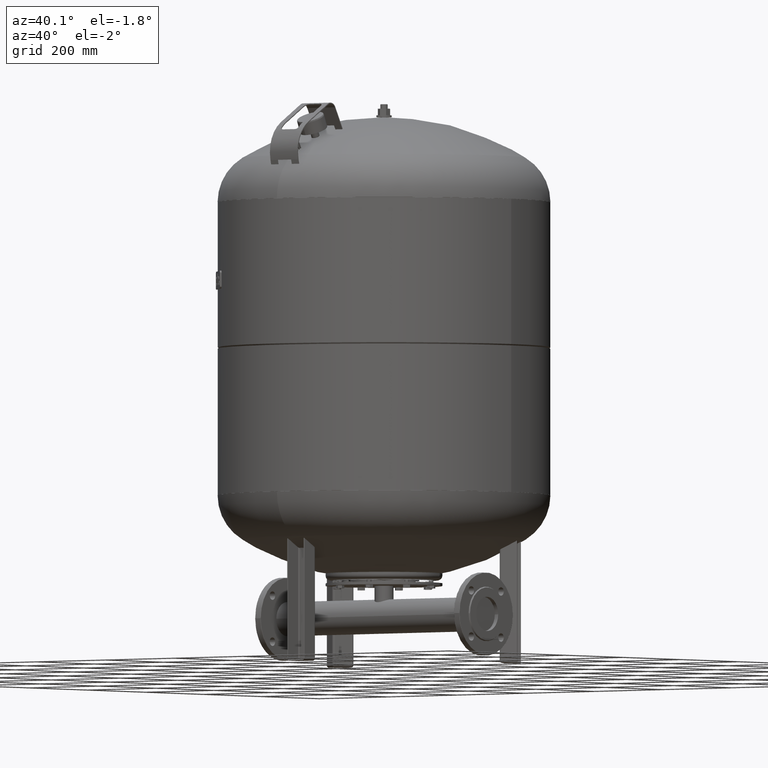
[diagram: clean part render]
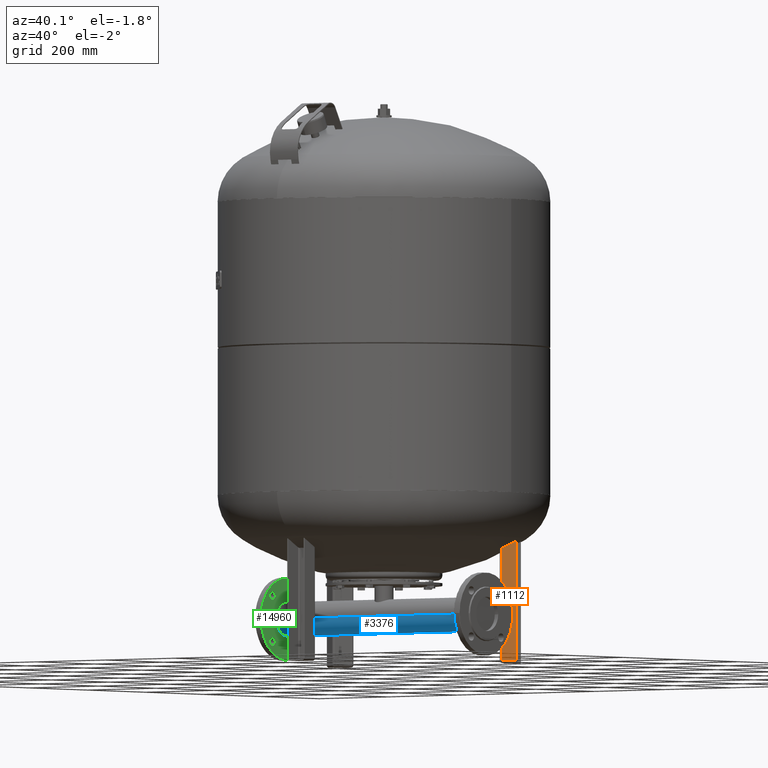
[diagram: same view with three faces highlighted in distinct colors, each labeled with its STEP entity id]
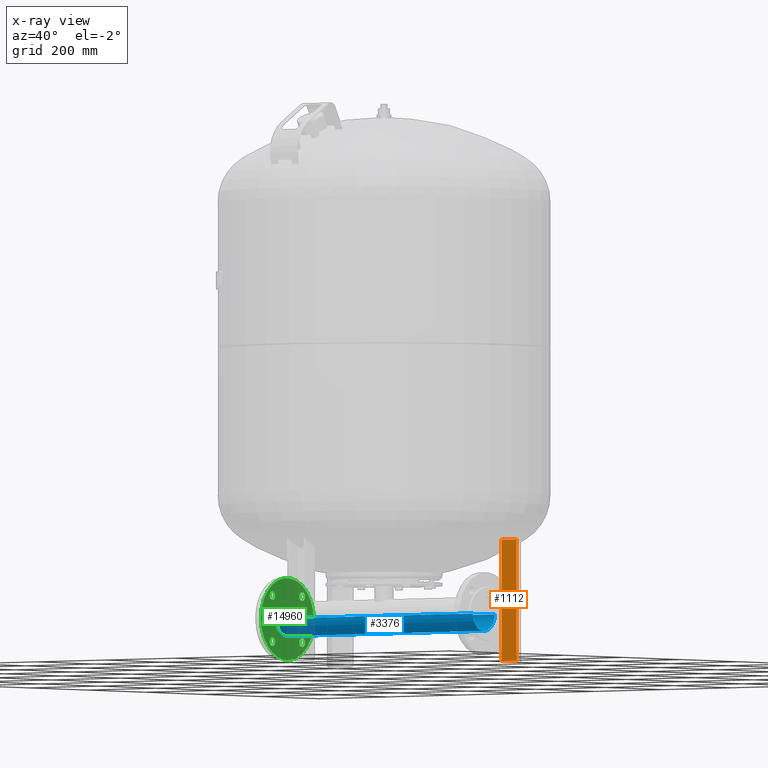
[diagram: x-ray of the same camera — body ghosted, the three highlighted faces saturated]
A machine part, auxiliary view with three faces highlighted in distinct colors.
The next image is the same camera in x-ray (body ghosted, the three faces saturated) — at least one of them is partly hidden behind the body in this view.
Their STEP definitions:

[orange] entity #1112 — the highlighted planar face has unit normal (0.5, -0.866, -0).
#284=CARTESIAN_POINT('',(246.326859021798440,113.349364905388970,274.0));
#285=VERTEX_POINT('',#284);
#293=CARTESIAN_POINT('',(275.771722750469340,130.349364905388970,274.0));
#294=VERTEX_POINT('',#293);
#295=CARTESIAN_POINT('',(275.771722750469340,130.349364905388970,274.0));
#296=DIRECTION('',(-0.866025403784438,-0.500000000000000,0.0));
#297=VECTOR('',#296,33.999999999999986);
#298=LINE('',#295,#297);
#299=EDGE_CURVE('',#294,#285,#298,.T.);
#604=CARTESIAN_POINT('',(275.771722750469340,130.349364905388970,4.999999999999996));
#605=VERTEX_POINT('',#604);
#606=CARTESIAN_POINT('',(275.771722750469340,130.349364905388970,4.999999999999996));
#607=DIRECTION('',(0.0,0.0,1.0));
#608=VECTOR('',#607,269.0);
#609=LINE('',#606,#608);
#610=EDGE_CURVE('',#605,#294,#609,.T.);
#987=CARTESIAN_POINT('',(246.326859021798440,113.349364905388980,4.999999999999996));
#988=VERTEX_POINT('',#987);
#989=CARTESIAN_POINT('',(275.771722750469340,130.349364905388970,4.999999999999996));
#990=DIRECTION('',(-0.866025403784439,-0.500000000000000,0.0));
#991=VECTOR('',#990,33.999999999999979);
#992=LINE('',#989,#991);
#993=EDGE_CURVE('',#605,#988,#992,.T.);
#1090=CARTESIAN_POINT('',(246.326859021798440,113.349364905388980,4.999999999999996));
#1091=DIRECTION('',(0.0,0.0,1.0));
#1092=VECTOR('',#1091,269.0);
#1093=LINE('',#1090,#1092);
#1094=EDGE_CURVE('',#988,#285,#1093,.T.);
#1101=CARTESIAN_POINT('',(276.637748154253810,130.849364905388970,-4.592425E-015));
#1102=DIRECTION('',(0.500000000000000,-0.866025403784439,-1.836970E-016));
#1103=DIRECTION('',(0.866025403784439,0.500000000000000,4.078893E-032));
#1104=AXIS2_PLACEMENT_3D('',#1101,#1102,#1103);
#1105=PLANE('',#1104);
#1106=ORIENTED_EDGE('',*,*,#610,.T.);
#1107=ORIENTED_EDGE('',*,*,#299,.T.);
#1108=ORIENTED_EDGE('',*,*,#1094,.F.);
#1109=ORIENTED_EDGE('',*,*,#993,.F.);
#1110=EDGE_LOOP('',(#1106,#1107,#1108,#1109));
#1111=FACE_OUTER_BOUND('',#1110,.T.);
#1112=ADVANCED_FACE('',(#1111),#1105,.T.);

[blue] entity #3376 — the highlighted cylindrical surface (edge-blend (fillet) strip) has radius 38.05 mm, axis along (-1, 0, 0).
#3335=CARTESIAN_POINT('',(-247.500000000000030,0.0,105.000000000000010));
#3336=DIRECTION('',(-1.0,0.0,0.0));
#3337=DIRECTION('',(0.0,-1.0,0.0));
#3338=AXIS2_PLACEMENT_3D('',#3335,#3336,#3337);
#3339=CYLINDRICAL_SURFACE('',#3338,38.049999999999997);
#3340=CARTESIAN_POINT('',(-290.0,-38.049999999999997,105.000000000000010));
#3341=VERTEX_POINT('',#3340);
#3342=CARTESIAN_POINT('',(290.0,-38.049999999999997,105.000000000000010));
#3343=VERTEX_POINT('',#3342);
#3344=CARTESIAN_POINT('',(-290.0,-38.049999999999997,105.000000000000010));
#3345=DIRECTION('',(1.0,0.0,0.0));
#3346=VECTOR('',#3345,580.0);
#3347=LINE('',#3344,#3346);
#3348=EDGE_CURVE('',#3341,#3343,#3347,.T.);
#3349=ORIENTED_EDGE('',*,*,#3348,.F.);
#3350=CARTESIAN_POINT('',(-290.0,38.049999999999997,105.000000000000010));
#3351=VERTEX_POINT('',#3350);
#3352=CARTESIAN_POINT('',(-290.0,0.0,105.000000000000010));
#3353=DIRECTION('',(-1.0,0.0,0.0));
#3354=DIRECTION('',(0.0,-1.0,0.0));
#3355=AXIS2_PLACEMENT_3D('',#3352,#3353,#3354);
#3356=CIRCLE('',#3355,38.049999999999997);
#3357=EDGE_CURVE('',#3351,#3341,#3356,.T.);
#3358=ORIENTED_EDGE('',*,*,#3357,.F.);
#3359=CARTESIAN_POINT('',(290.0,38.049999999999997,105.000000000000010));
#3360=VERTEX_POINT('',#3359);
#3361=CARTESIAN_POINT('',(-290.0,38.049999999999997,105.000000000000010));
#3362=DIRECTION('',(1.0,0.0,0.0));
#3363=VECTOR('',#3362,580.0);
#3364=LINE('',#3361,#3363);
#3365=EDGE_CURVE('',#3351,#3360,#3364,.T.);
#3366=ORIENTED_EDGE('',*,*,#3365,.T.);
#3367=CARTESIAN_POINT('',(290.0,0.0,105.000000000000010));
#3368=DIRECTION('',(-1.0,0.0,0.0));
#3369=DIRECTION('',(0.0,-1.0,0.0));
#3370=AXIS2_PLACEMENT_3D('',#3367,#3368,#3369);
#3371=CIRCLE('',#3370,38.049999999999997);
#3372=EDGE_CURVE('',#3360,#3343,#3371,.T.);
#3373=ORIENTED_EDGE('',*,*,#3372,.T.);
#3374=EDGE_LOOP('',(#3349,#3358,#3366,#3373));
#3375=FACE_OUTER_BOUND('',#3374,.T.);
#3376=ADVANCED_FACE('',(#3375),#3339,.T.);

[green] entity #14960 — the highlighted planar face has unit normal (-1, 0, 0).
#13928=CARTESIAN_POINT('',(-281.0,-60.765241636024662,156.265241636024710));
#13929=VERTEX_POINT('',#13928);
#13938=CARTESIAN_POINT('',(-281.0,-41.765241636024662,156.265241636024710));
#13939=VERTEX_POINT('',#13938);
#13940=CARTESIAN_POINT('',(-281.0,-51.265241636024662,156.265241636024710));
#13941=DIRECTION('',(1.0,0.0,0.0));
#13942=DIRECTION('',(0.0,-1.0,0.0));
#13943=AXIS2_PLACEMENT_3D('',#13940,#13941,#13942);
#13944=CIRCLE('',#13943,9.500000000000000);
#13945=EDGE_CURVE('',#13929,#13939,#13944,.T.);
#13991=CARTESIAN_POINT('',(-281.0,-60.765241636024754,53.734758363975367));
#13992=VERTEX_POINT('',#13991);
#14001=CARTESIAN_POINT('',(-281.0,-41.765241636024754,53.734758363975367));
#14002=VERTEX_POINT('',#14001);
#14003=CARTESIAN_POINT('',(-281.0,-51.265241636024754,53.734758363975367));
#14004=DIRECTION('',(1.0,0.0,0.0));
#14005=DIRECTION('',(0.0,-1.0,0.0));
#14006=AXIS2_PLACEMENT_3D('',#14003,#14004,#14005);
#14007=CIRCLE('',#14006,9.500000000000000);
#14008=EDGE_CURVE('',#13992,#14002,#14007,.T.);
#14054=CARTESIAN_POINT('',(-281.0,41.765241636024690,53.734758363975303));
#14055=VERTEX_POINT('',#14054);
#14064=CARTESIAN_POINT('',(-281.0,60.765241636024690,53.734758363975303));
#14065=VERTEX_POINT('',#14064);
#14066=CARTESIAN_POINT('',(-281.0,51.265241636024690,53.734758363975303));
#14067=DIRECTION('',(1.0,0.0,0.0));
#14068=DIRECTION('',(0.0,-1.0,0.0));
#14069=AXIS2_PLACEMENT_3D('',#14066,#14067,#14068);
#14070=CIRCLE('',#14069,9.500000000000000);
#14071=EDGE_CURVE('',#14055,#14065,#14070,.T.);
#14117=CARTESIAN_POINT('',(-281.0,41.765241636024712,156.265241636024680));
#14118=VERTEX_POINT('',#14117);
#14127=CARTESIAN_POINT('',(-281.0,60.765241636024712,156.265241636024680));
#14128=VERTEX_POINT('',#14127);
#14129=CARTESIAN_POINT('',(-281.0,51.265241636024712,156.265241636024680));
#14130=DIRECTION('',(1.0,0.0,0.0));
#14131=DIRECTION('',(0.0,-1.0,0.0));
#14132=AXIS2_PLACEMENT_3D('',#14129,#14130,#14131);
#14133=CIRCLE('',#14132,9.500000000000000);
#14134=EDGE_CURVE('',#14118,#14128,#14133,.T.);
#14352=CARTESIAN_POINT('',(-281.0,-91.500000000000000,105.0));
#14353=VERTEX_POINT('',#14352);
#14362=CARTESIAN_POINT('',(-281.0,91.500000000000000,105.000000000000030));
#14363=VERTEX_POINT('',#14362);
#14371=CARTESIAN_POINT('',(-281.0,-3.490128E-015,105.0));
#14372=DIRECTION('',(1.0,0.0,0.0));
#14373=DIRECTION('',(0.0,1.0,0.0));
#14374=AXIS2_PLACEMENT_3D('',#14371,#14372,#14373);
#14375=CIRCLE('',#14374,91.500000000000000);
#14376=EDGE_CURVE('',#14353,#14363,#14375,.T.);
#14543=CARTESIAN_POINT('',(-281.0,-3.490128E-015,105.0));
#14544=DIRECTION('',(1.0,0.0,0.0));
#14545=DIRECTION('',(0.0,1.0,0.0));
#14546=AXIS2_PLACEMENT_3D('',#14543,#14544,#14545);
#14547=CIRCLE('',#14546,91.500000000000000);
#14548=EDGE_CURVE('',#14363,#14353,#14547,.T.);
#14755=CARTESIAN_POINT('',(-281.0,51.265241636024712,156.265241636024680));
#14756=DIRECTION('',(1.0,0.0,0.0));
#14757=DIRECTION('',(0.0,-1.0,0.0));
#14758=AXIS2_PLACEMENT_3D('',#14755,#14756,#14757);
#14759=CIRCLE('',#14758,9.500000000000000);
#14760=EDGE_CURVE('',#14128,#14118,#14759,.T.);
#14794=CARTESIAN_POINT('',(-281.0,51.265241636024690,53.734758363975303));
#14795=DIRECTION('',(1.0,0.0,0.0));
#14796=DIRECTION('',(0.0,-1.0,0.0));
#14797=AXIS2_PLACEMENT_3D('',#14794,#14795,#14796);
#14798=CIRCLE('',#14797,9.500000000000000);
#14799=EDGE_CURVE('',#14065,#14055,#14798,.T.);
#14833=CARTESIAN_POINT('',(-281.0,-51.265241636024754,53.734758363975367));
#14834=DIRECTION('',(1.0,0.0,0.0));
#14835=DIRECTION('',(0.0,-1.0,0.0));
#14836=AXIS2_PLACEMENT_3D('',#14833,#14834,#14835);
#14837=CIRCLE('',#14836,9.500000000000000);
#14838=EDGE_CURVE('',#14002,#13992,#14837,.T.);
#14872=CARTESIAN_POINT('',(-281.0,-51.265241636024662,156.265241636024710));
#14873=DIRECTION('',(1.0,0.0,0.0));
#14874=DIRECTION('',(0.0,-1.0,0.0));
#14875=AXIS2_PLACEMENT_3D('',#14872,#14873,#14874);
#14876=CIRCLE('',#14875,9.500000000000000);
#14877=EDGE_CURVE('',#13939,#13929,#14876,.T.);
#14935=CARTESIAN_POINT('',(-281.0,-5.329071E-014,104.999999999999910));
#14936=DIRECTION('',(-1.0,0.0,0.0));
#14937=DIRECTION('',(0.0,0.0,1.0));
#14938=AXIS2_PLACEMENT_3D('',#14935,#14936,#14937);
#14939=PLANE('',#14938);
#14940=ORIENTED_EDGE('',*,*,#14376,.T.);
#14941=ORIENTED_EDGE('',*,*,#14548,.T.);
#14942=EDGE_LOOP('',(#14940,#14941));
#14943=FACE_OUTER_BOUND('',#14942,.T.);
#14944=ORIENTED_EDGE('',*,*,#14134,.F.);
#14945=ORIENTED_EDGE('',*,*,#14760,.F.);
#14946=EDGE_LOOP('',(#14944,#14945));
#14947=FACE_BOUND('',#14946,.T.);
#14948=ORIENTED_EDGE('',*,*,#14071,.F.);
#14949=ORIENTED_EDGE('',*,*,#14799,.F.);
#14950=EDGE_LOOP('',(#14948,#14949));
#14951=FACE_BOUND('',#14950,.T.);
#14952=ORIENTED_EDGE('',*,*,#14008,.F.);
#14953=ORIENTED_EDGE('',*,*,#14838,.F.);
#14954=EDGE_LOOP('',(#14952,#14953));
#14955=FACE_BOUND('',#14954,.T.);
#14956=ORIENTED_EDGE('',*,*,#13945,.F.);
#14957=ORIENTED_EDGE('',*,*,#14877,.F.);
#14958=EDGE_LOOP('',(#14956,#14957));
#14959=FACE_BOUND('',#14958,.T.);
#14960=ADVANCED_FACE('',(#14943,#14947,#14951,#14955,#14959),#14939,.F.);